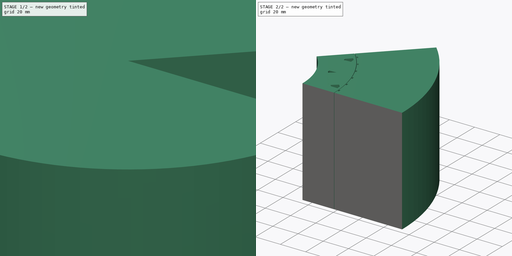
[diagram: build sequence overview — one tinted view per stage of 2, left to right]
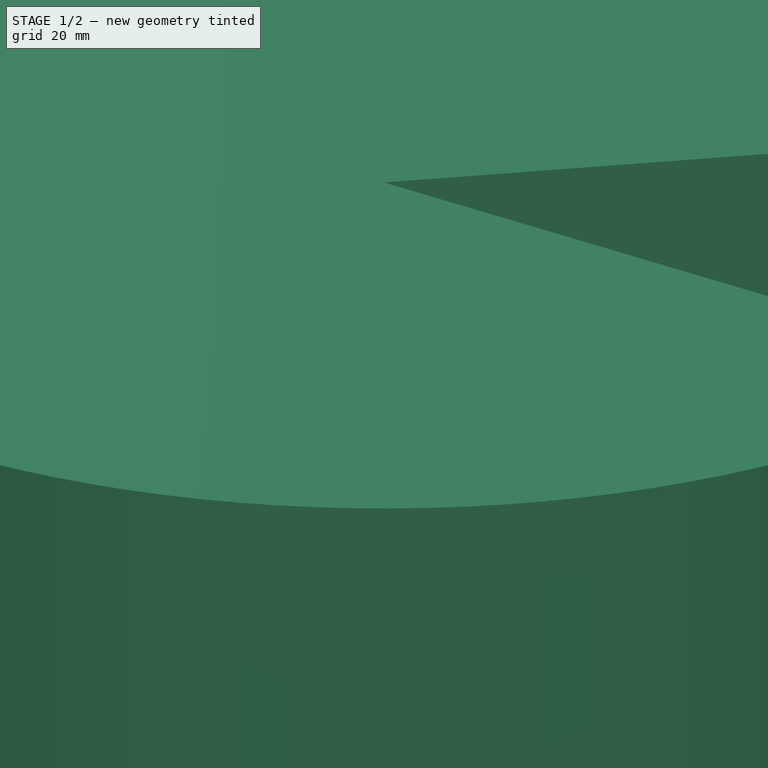
[diagram: stage 1 of 2 — iso view after this stage's code; geometry added in this stage tinted green]
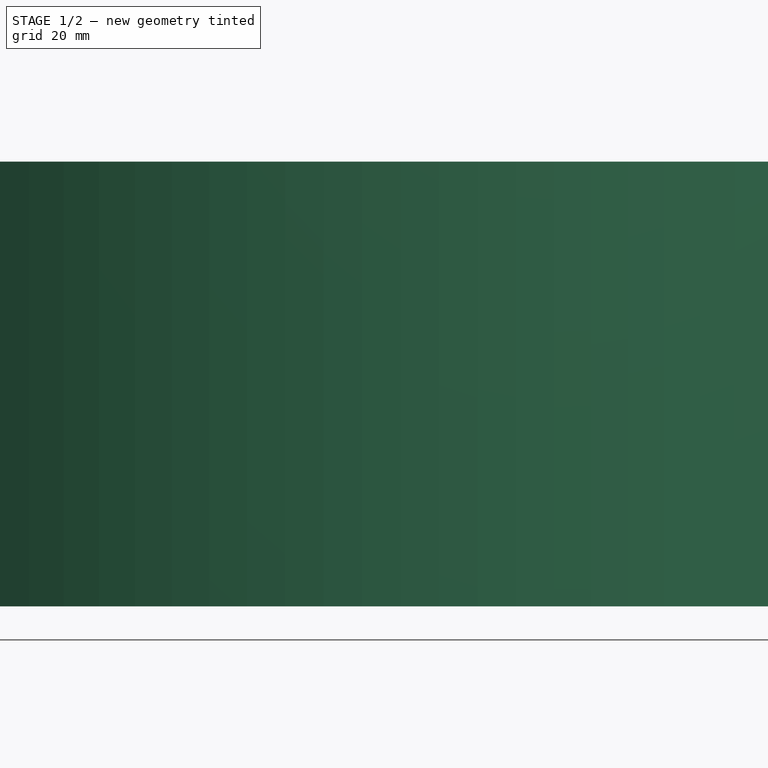
[diagram: stage 1 of 2 — front view after this stage's code; geometry added in this stage tinted green]
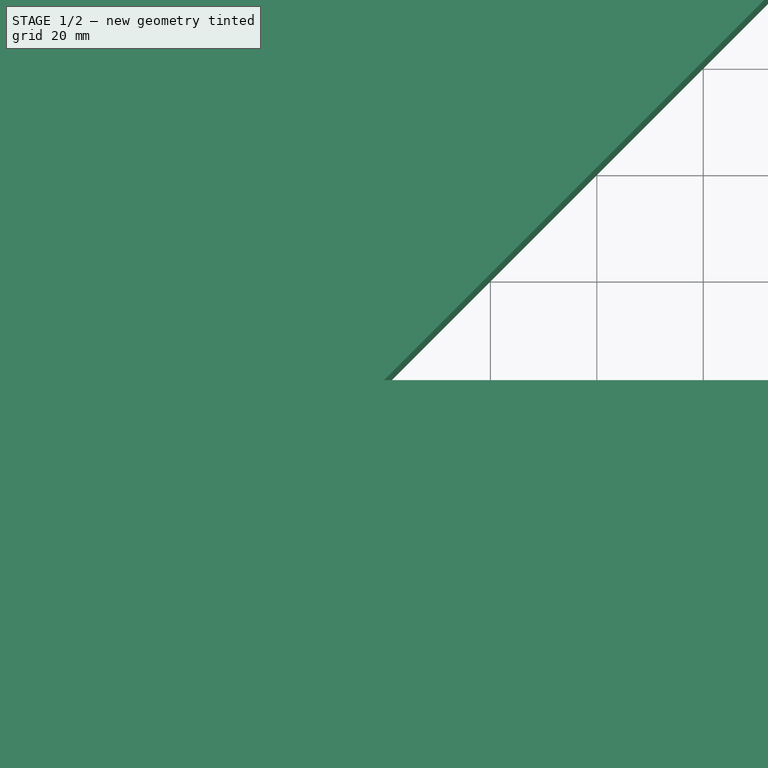
[diagram: stage 1 of 2 — top view after this stage's code; geometry added in this stage tinted green]
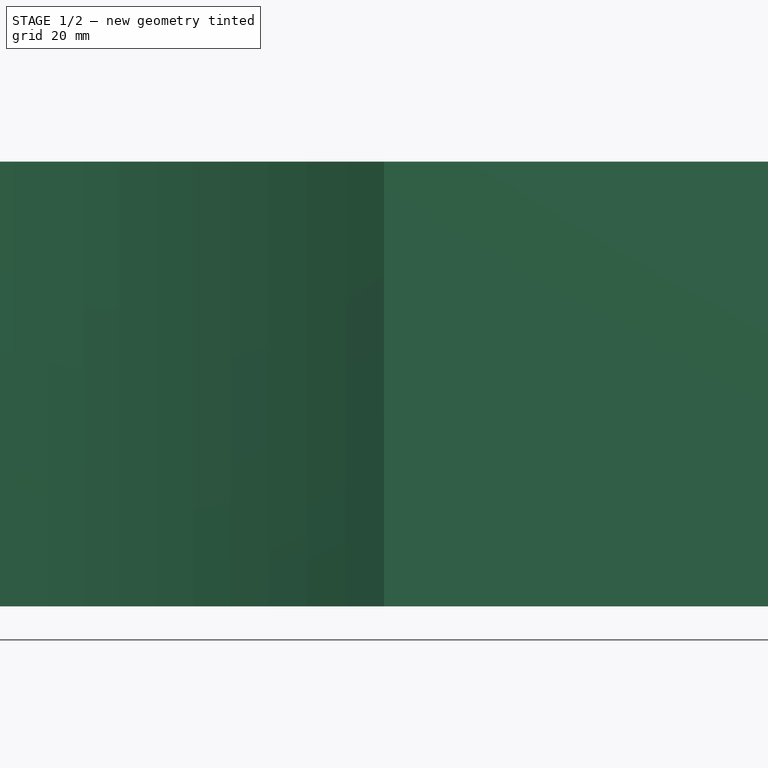
[diagram: stage 1 of 2 — right view after this stage's code; geometry added in this stage tinted green]
FCSTD DOCUMENT  (FreeCAD 0.18R4 (GitTag))
Label: MOTOR_PIZZA
License: All rights reserved
LicenseURL: http://en.wikipedia.org/wiki/All_rights_reserved
objects: Sketcher::SketchObject×2, Part::Feature×1, PartDesign::Pad×1, PartDesign::Body×1, Part::Cut×1
note: 7 computed .brp shape members not serialized (recipe doc carries the construction recipe); baked Part::Feature solids carry a one-line shape summary decoded from their .brp

FEATURE [Part::Feature] Feature  label="MOTOR_ASSLY_AIRGAP"
  shape: bbox 269 x 269 x 83.6 mm, 1185 faces, 52 solids (baked)
FEATURE [Sketcher::SketchObject] Sketch
  MapMode = 5
  Support = -> [XY_Plane]
  sketch-geometry (3):
    g0: ArcOfCircle CenterX=-2.55e-14 CenterY=2.74e-14 CenterZ=0 NormalX=0 NormalY=0 NormalZ=1 AngleXU=0 Radius=145 StartAngle=0.785398 EndAngle=6.28319
    g1: LineSegment StartX=0 StartY=0 StartZ=0 EndX=145 EndY=0 EndZ=0
    g2: LineSegment StartX=0 StartY=0 StartZ=0 EndX=102.53 EndY=102.53 EndZ=0
  constraints (9):
    c: Coincident(g0,g2)
    c: Coincident(g0,g1)
    c: Diameter(g0) = 290
    c: Distance(g1) = 145
    c: Equal(g1,g2)
    c: Horizontal(g1)
    c: Angle(g1,g2) = 0.785398
    c: Coincident(g2,g-1)
    c: Coincident(g1,g2)
FEATURE [PartDesign::Pad] Pad
  Length = 83.6
  Length2 = 100
  Profile = -> Sketch
  Reversed = true
  Type = 0
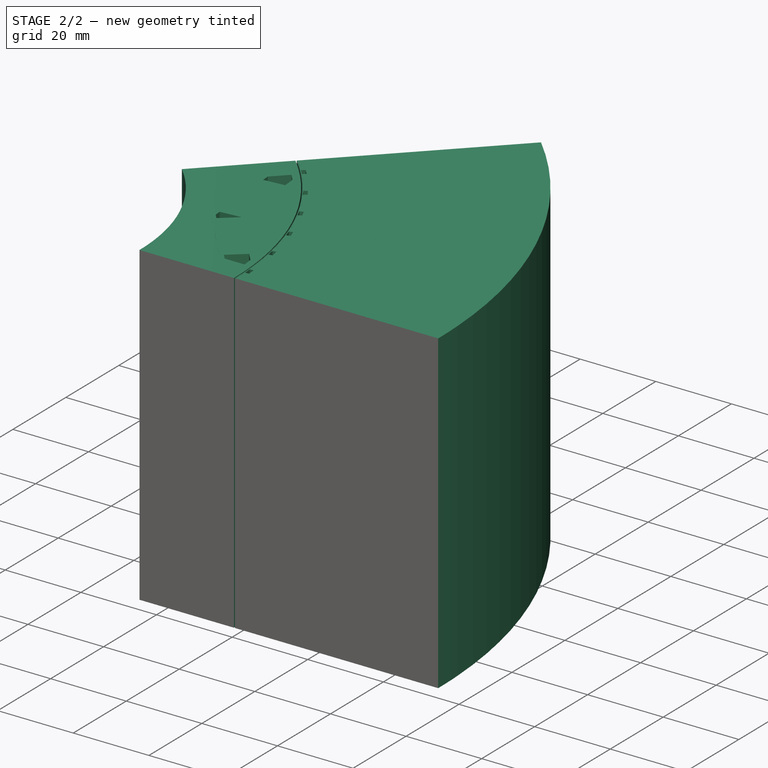
[diagram: stage 2 of 2 — iso view after this stage's code; geometry added in this stage tinted green]
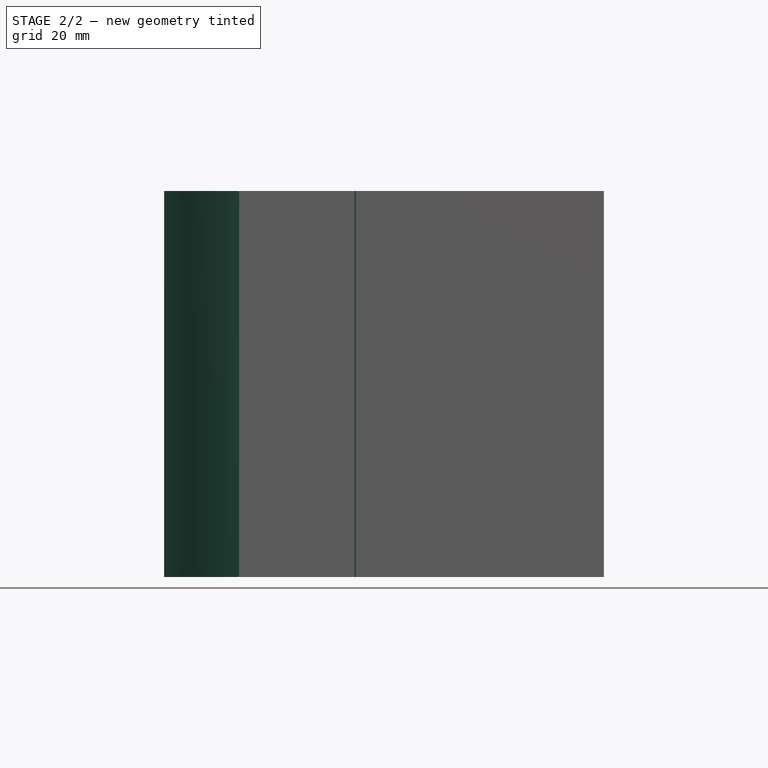
[diagram: stage 2 of 2 — front view after this stage's code; geometry added in this stage tinted green]
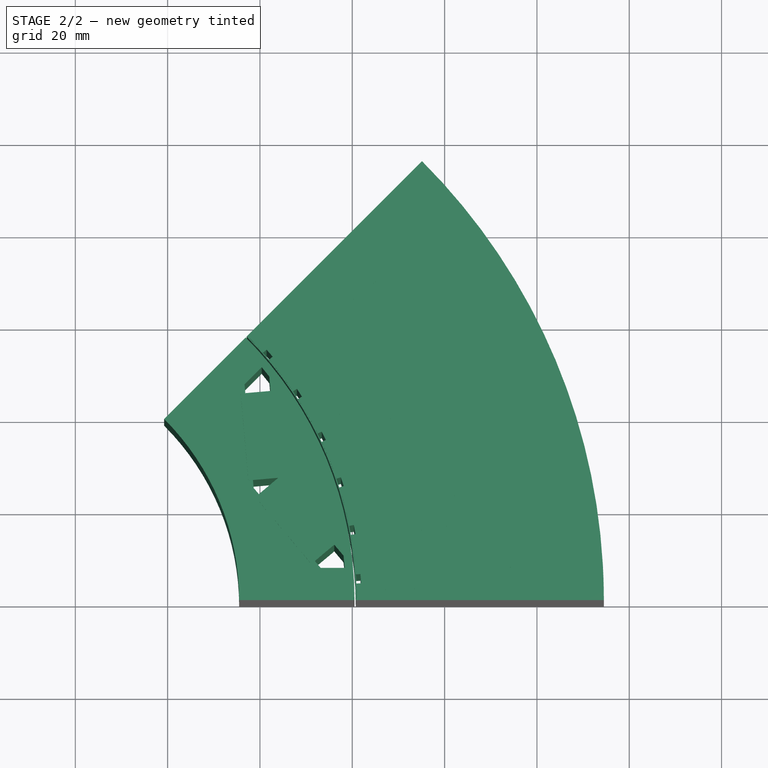
[diagram: stage 2 of 2 — top view after this stage's code; geometry added in this stage tinted green]
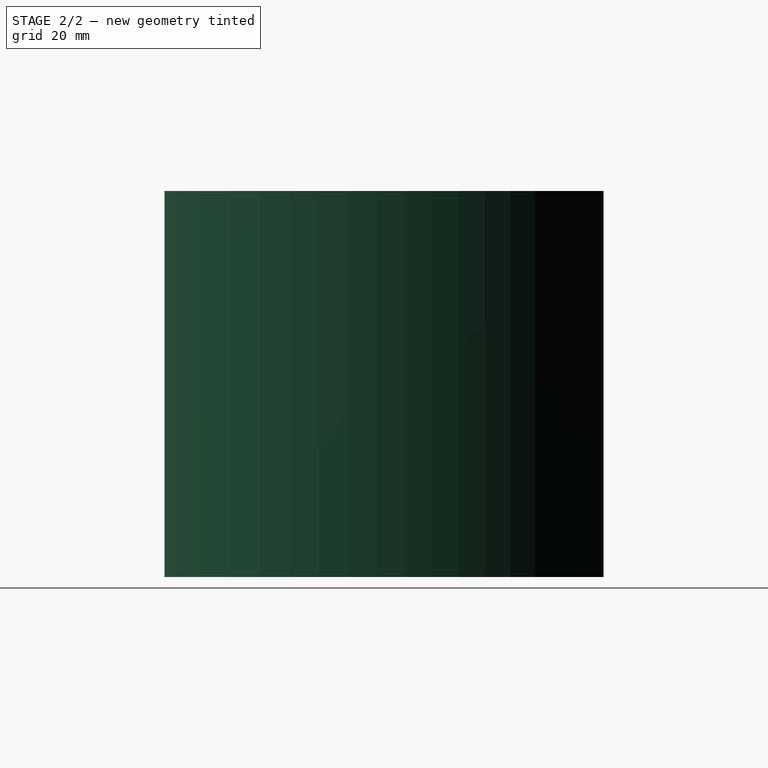
[diagram: stage 2 of 2 — right view after this stage's code; geometry added in this stage tinted green]
FEATURE [PartDesign::Body] Body
  Group = -> [Sketch,Pad]
  Origin = -> Origin
  Tip = -> Pad
FEATURE [Part::Cut] Cut
  Base = -> Feature
  Tool = -> Body
FEATURE [Sketcher::SketchObject] Sketch001
  MapMode = 2
  Support = -> [Cut]
  sketch-geometry (3):
    g0: LineSegment [constr] StartX=0 StartY=0 StartZ=0 EndX=145 EndY=0 EndZ=0
    g1: LineSegment [constr] StartX=0 StartY=0 StartZ=0 EndX=152.591 EndY=18.7359 EndZ=0
    g2: LineSegment [constr] StartX=0 StartY=0 StartZ=0 EndX=172.833 EndY=97.784 EndZ=0
  constraints (7):
    c: Coincident(g0,g-1)
    c: Horizontal(g0)
    c: Distance(g0) = 145
    c: Coincident(g1,g-1)
    c: Angle(g0,g1) = 0.122173
    c: Coincident(g2,g-1)
    c: Angle(g1,g2) = 0.392699
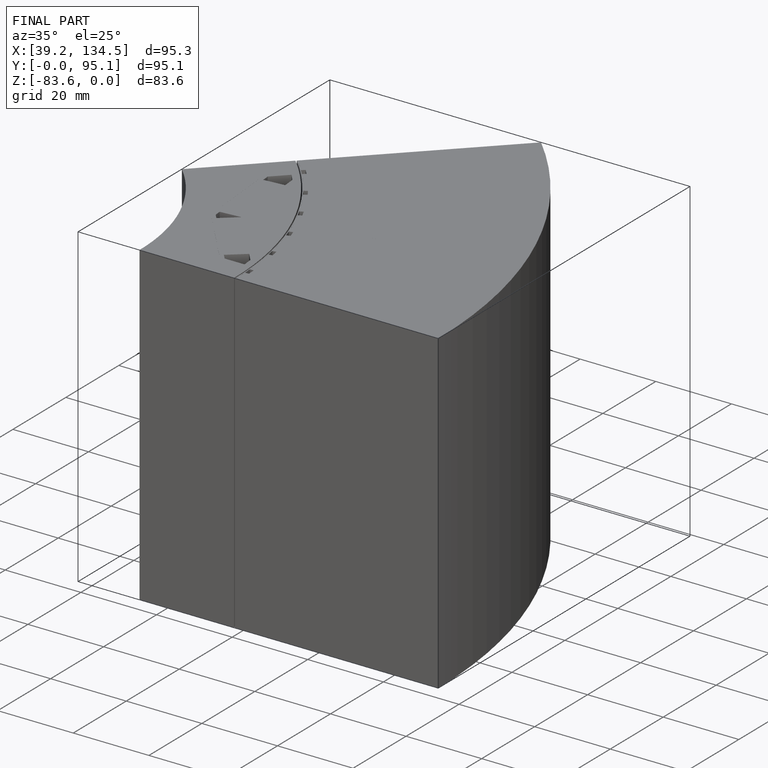
[diagram: finished part — iso view with bounding-box wireframe]
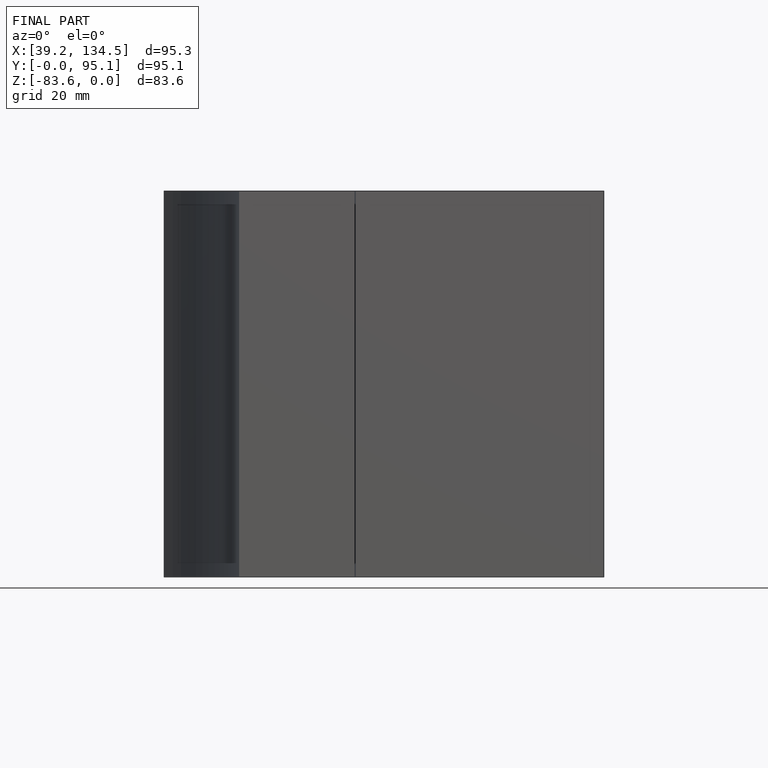
[diagram: finished part — front view with bounding-box wireframe]
